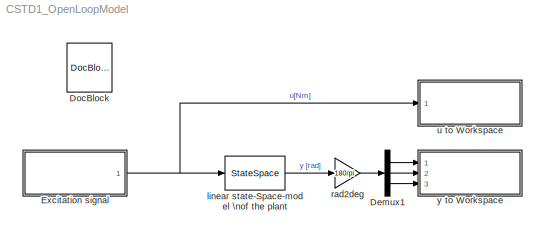
MODEL CSTD1_OpenLoopModel
KIND model
CONFIG InitFcn = load state_space_model.mat;\n
BLOCK [Demux] Demux1
  Outputs = 3
  Ports = [1, 3]
  SID = 1
BLOCK [Reference] DocBlock  REF=simulink/Model-Wide\nUtilities/DocBlock
  DocumentType = Text
  Ports = []
  RTWMemSecDataConstants = Inherit from model
  RTWMemSecDataInternal = Inherit from model
  RTWMemSecDataParameters = Inherit from model
  RTWMemSecFuncExecute = Inherit from model
  RTWMemSecFuncInitTerm = Inherit from model
  SID = 44
  SourceBlock = simulink/Model-Wide\nUtilities/DocBlock
  SourceProductBaseCode = SL
  SourceType = DocBlock
  UserData = DataTag0
  UserDataPersistent = on
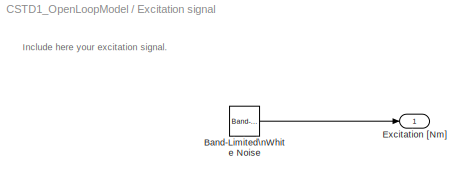
BLOCK [SubSystem] Excitation signal
  Ports = [0, 1]
  RequestExecContextInheritance = off
  SID = 2
BLOCK [Reference] Excitation signal/Band-Limited\nWhite Noise  REF=simulink/Sources/Band-Limited\nWhite Noise
  Cov = [0.000194]
  Ports = [0, 1]
  RTWMemSecDataConstants = Inherit from model
  RTWMemSecDataInternal = Inherit from model
  RTWMemSecDataParameters = Inherit from model
  RTWMemSecFuncExecute = Inherit from model
  RTWMemSecFuncInitTerm = Inherit from model
  SID = 50
  SourceBlock = simulink/Sources/Band-Limited\nWhite Noise
  SourceProductBaseCode = SL
  SourceType = Band-Limited White Noise.
  Ts = 0.001
  VectorParams1D = on
  seed = [23341]
BLOCK [Outport] Excitation signal/Excitation [Nm]
  SID = 15
  VectorParamsAs1DForOutWhenUnconnected = off
BLOCK [StateSpace] linear state-Space-model \nof the plant
  A = A_sim
  B = B_sim
  C = C_sim
  D = D_sim
  InitialCondition = 0
  Ports = [1, 1]
  SID = 17
BLOCK [Gain] rad2deg
  Gain = 180/pi
  SID = 16
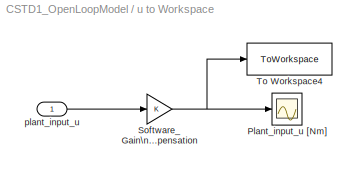
BLOCK [SubSystem] u to Workspace
  Ports = [1]
  RequestExecContextInheritance = off
  SID = 18
BLOCK [Scope] u to Workspace/Plant_input_u [Nm]
  Floating = off
  NumInputPorts = 1
  Ports = [1]
  SID = 20
  ScopeSpecificationString = Simulink.scopes.TimeScopeBlockCfg('CurrentConfiguration', extmgr.ConfigurationSet(extmgr.Configuration('Core','General UI',true),extmgr.Configuration('Core','Source UI',true),extmgr.Configuration('Sources','WiredSimulink',true,'DataLoggingVariableName','ScopeData5','DataLoggingSaveFormat','StructureWithTime','DataLoggingDecimation','1','DataLoggingDecimateData',true),extmgr.Configuration('Visuals'...<+1703ch>
BLOCK [Gain] u to Workspace/Software_Gain\nCompensation
  SID = 21
BLOCK [ToWorkspace] u to Workspace/To Workspace4
  MaxDataPoints = inf
  Ports = [1]
  SID = 22
  SampleTime = -1
  VariableName = Plant_input_u
BLOCK [Inport] u to Workspace/plant_input_u
  SID = 19
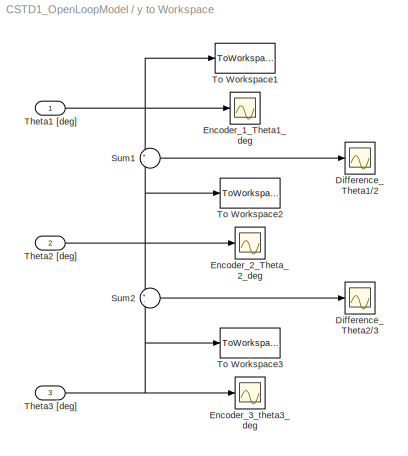
BLOCK [SubSystem] y to Workspace
  Ports = [3]
  RequestExecContextInheritance = off
  SID = 23
BLOCK [Scope] y to Workspace/Difference_Theta1//2
  Floating = off
  NumInputPorts = 1
  Ports = [1]
  SID = 27
  ScopeSpecificationString = C++SS(StrPVP('Location','[1006, 708, 1275, 983]'),StrPVP('Open','off'),MxPVP('AxesTitles',54,'struct(''axes1'',''%<SignalLabel>'')'),MxPVP('ScopeGraphics',57,'struct(''FigureColor'',''[0.5 0.5 0.5]'',''AxesColor'',''[0 0 0]'',''AxesTickColor'',''[1 1 1]'',''LineColors'',''[1 1 0;1 0 1;0 1 1;1 0 0;0 1 0;0 0 1]'',''LineStyles'',''-|-|-|-|-|-'',''LineWidths'',''[0.5 0.5 0.5 0.5 0.5 0.5]'',''MarkerSty...<+310ch>
BLOCK [Scope] y to Workspace/Difference_Theta2//3
  Floating = off
  NumInputPorts = 1
  Ports = [1]
  SID = 28
  ScopeSpecificationString = C++SS(StrPVP('Location','[735, 714, 1005, 989]'),StrPVP('Open','off'),MxPVP('AxesTitles',54,'struct(''axes1'',''%<SignalLabel>'')'),StrPVP('ShowLegends','off'),StrPVP('YMin','-35'),StrPVP('YMax','35'),StrPVP('SaveName','ScopeData1'),StrPVP('DataFormat','StructureWithTime'),StrPVP('LimitDataPoints','off'),StrPVP('BlockParamSampleTime','0'),StrPVP('ScrollMode','off'),StrPVP('Decimation','1'),StrPVP(...<+31ch>
BLOCK [Scope] y to Workspace/Encoder_1_Theta1_deg
  Floating = off
  NumInputPorts = 1
  Ports = [1]
  SID = 29
  ScopeSpecificationString = C++SS(StrPVP('Location','[516, 369, 833, 695]'),StrPVP('Open','off'),MxPVP('AxesTitles',54,'struct(''axes1'',''%<SignalLabel>'')'),MxPVP('ScopeGraphics',57,'struct(''FigureColor'',''[0.5 0.5 0.5]'',''AxesColor'',''[0 0 0]'',''AxesTickColor'',''[1 1 1]'',''LineColors'',''[1 1 0;1 0 1;0 1 1;1 0 0;0 1 0;0 0 1]'',''LineStyles'',''-|-|-|-|-|-'',''LineWidths'',''[0.5 0.5 0.5 0.5 0.5 0.5]'',''MarkerStyle...<+340ch>
BLOCK [Scope] y to Workspace/Encoder_2_Theta_2_deg
  Floating = off
  NumInputPorts = 1
  Ports = [1]
  SID = 30
  ScopeSpecificationString = C++SS(StrPVP('Location','[953, 347, 1268, 596]'),StrPVP('Open','off'),MxPVP('AxesTitles',54,'struct(''axes1'',''%<SignalLabel>'')'),MxPVP('ScopeGraphics',57,'struct(''FigureColor'',''[0.5 0.5 0.5]'',''AxesColor'',''[0 0 0]'',''AxesTickColor'',''[1 1 1]'',''LineColors'',''[1 1 0;1 0 1;0 1 1;1 0 0;0 1 0;0 0 1]'',''LineStyles'',''-|-|-|-|-|-'',''LineWidths'',''[0.5 0.5 0.5 0.5 0.5 0.5]'',''MarkerStyl...<+341ch>
BLOCK [Scope] y to Workspace/Encoder_3_theta3_deg
  Floating = off
  NumInputPorts = 1
  Ports = [1]
  SID = 31
  ScopeSpecificationString = C++SS(StrPVP('Location','[943, 53, 1267, 292]'),StrPVP('Open','off'),MxPVP('AxesTitles',54,'struct(''axes1'',''%<SignalLabel>'')'),MxPVP('ScopeGraphics',57,'struct(''FigureColor'',''[0.5 0.5 0.5]'',''AxesColor'',''[0 0 0]'',''AxesTickColor'',''[1 1 1]'',''LineColors'',''[1 1 0;1 0 1;0 1 1;1 0 0;0 1 0;0 0 1]'',''LineStyles'',''-|-|-|-|-|-'',''LineWidths'',''[0.5 0.5 0.5 0.5 0.5 0.5]'',''MarkerStyle...<+342ch>
BLOCK [Sum] y to Workspace/Sum1
  Inputs = +-
  Ports = [2, 1]
  SID = 32
BLOCK [Sum] y to Workspace/Sum2
  Inputs = +-
  Ports = [2, 1]
  SID = 33
BLOCK [Inport] y to Workspace/Theta1 [deg]
  SID = 24
BLOCK [Inport] y to Workspace/Theta2 [deg]
  Port = 2
  SID = 25
BLOCK [Inport] y to Workspace/Theta3 [deg]
  Port = 3
  SID = 26
BLOCK [ToWorkspace] y to Workspace/To Workspace1
  MaxDataPoints = inf
  Ports = [1]
  SID = 34
  SampleTime = -1
  VariableName = Theta1
BLOCK [ToWorkspace] y to Workspace/To Workspace2
  MaxDataPoints = inf
  Ports = [1]
  SID = 35
  SampleTime = -1
  VariableName = Theta2
BLOCK [ToWorkspace] y to Workspace/To Workspace3
  MaxDataPoints = inf
  Ports = [1]
  SID = 36
  SampleTime = -1
  VariableName = Theta3
ANNOTATION Excitation signal: Include here your excitation signal.
LINE Demux1:1 -> y to Workspace:1
LINE Demux1:2 -> y to Workspace:2
LINE Demux1:3 -> y to Workspace:3
LINE Excitation signal/Band-Limited\nWhite Noise:1 -> Excitation signal/Excitation [Nm]:1
NET Excitation signal:1 -> linear state-Space-model \nof the plant:1, u to Workspace:1
LINE linear state-Space-model \nof the plant:1 -> rad2deg:1
LINE rad2deg:1 -> Demux1:1
NET u to Workspace/Software_Gain\nCompensation:1 -> u to Workspace/Plant_input_u [Nm]:1, u to Workspace/To Workspace4:1
LINE u to Workspace/plant_input_u:1 -> u to Workspace/Software_Gain\nCompensation:1
LINE y to Workspace/Sum1:1 -> y to Workspace/Difference_Theta1//2:1
LINE y to Workspace/Sum2:1 -> y to Workspace/Difference_Theta2//3:1
NET y to Workspace/Theta1 [deg]:1 -> y to Workspace/Encoder_1_Theta1_deg:1, y to Workspace/Sum1:1, y to Workspace/To Workspace1:1
NET y to Workspace/Theta2 [deg]:1 -> y to Workspace/Encoder_2_Theta_2_deg:1, y to Workspace/Sum1:2, y to Workspace/Sum2:1, y to Workspace/To Workspace2:1
NET y to Workspace/Theta3 [deg]:1 -> y to Workspace/Encoder_3_theta3_deg:1, y to Workspace/Sum2:2, y to Workspace/To Workspace3:1
note: NET lines group one-source signal fan-out (src -> all destinations, sorted); 1:1 wires keep LINE
